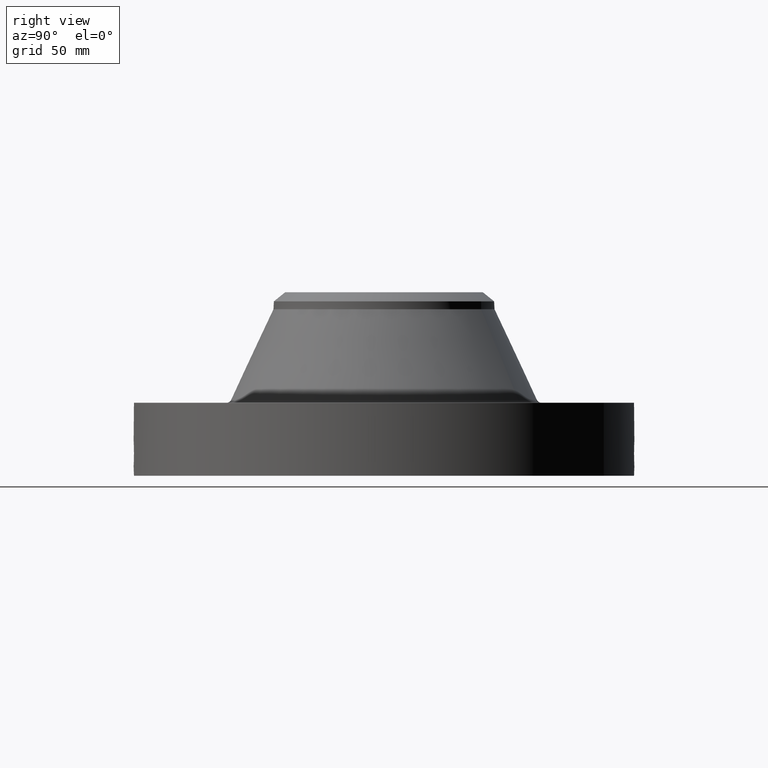
[diagram: clean part render]
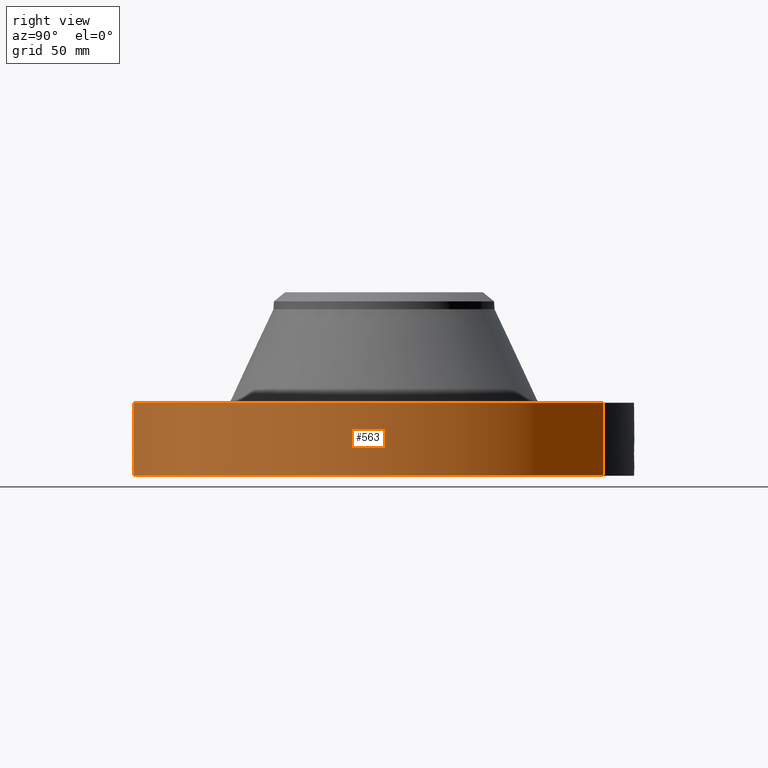
[diagram: same view with one face highlighted and labeled with its STEP entity id]
A machine part, right view. The second image highlights one B-rep face of the part: STEP entity #563.
In plain terms, the highlighted cylindrical surface (partial cylindrical patch) has radius 190.5 mm, axis along (0, 0, -1).
Its self-contained STEP definition (entity closure, byte-faithful):
#38=AXIS2_PLACEMENT_3D('Cylinder Axis2P3D',#35,#36,#37) ;
#169=AXIS2_PLACEMENT_3D('Circle Axis2P3D',#167,#168,$) ;
#467=AXIS2_PLACEMENT_3D('Circle Axis2P3D',#465,#466,$) ;
#35=CARTESIAN_POINT('Axis2P3D Location',(0.,0.,3.00000000001)) ;
#44=CARTESIAN_POINT('Vertex',(-3.59569153955,-6.5818692142,0.250000000001)) ;
#46=CARTESIAN_POINT('Vertex',(3.59569153955,6.5818692142,0.250000000001)) ;
#49=CARTESIAN_POINT('Line Origine',(-3.59569153955,-6.5818692142,1.34500000001)) ;
#53=CARTESIAN_POINT('Vertex',(-3.59569153955,-6.5818692142,2.44000000001)) ;
#60=CARTESIAN_POINT('Vertex',(3.59569153955,6.5818692142,2.44000000001)) ;
#63=CARTESIAN_POINT('Line Origine',(3.59569153955,6.5818692142,1.34500000001)) ;
#167=CARTESIAN_POINT('Axis2P3D Location',(0.,0.,0.250000000001)) ;
#465=CARTESIAN_POINT('Axis2P3D Location',(0.,0.,2.44000000001)) ;
#477=CARTESIAN_POINT('Control Point',(0.0594137259862,-7.49976466362,1.28909172961)) ;
#478=CARTESIAN_POINT('Control Point',(0.0400334612008,-7.4999181956,1.29239510268)) ;
#479=CARTESIAN_POINT('Control Point',(0.0203766834794,-7.49999808791,1.29407863473)) ;
#480=CARTESIAN_POINT('Control Point',(0.000716383547085,-7.49999996582,1.2941184985)) ;
#481=CARTESIAN_POINT('Vertex',(0.0593978658735,-7.49976505881,1.28909472339)) ;
#483=CARTESIAN_POINT('Vertex',(0.000716239285676,-7.49999996583,1.29411850892)) ;
#487=CARTESIAN_POINT('Control Point',(0.0593977563657,-7.49976479011,1.28909412322)) ;
#488=CARTESIAN_POINT('Control Point',(0.0983089030034,-7.49945661581,1.28408813024)) ;
#489=CARTESIAN_POINT('Control Point',(0.136423640249,-7.49884067125,1.27199856152)) ;
#490=CARTESIAN_POINT('Control Point',(0.171383379675,-7.49804159348,1.25374697693)) ;
#491=CARTESIAN_POINT('Vertex',(0.171383379675,-7.49804159348,1.25374697693)) ;
#495=CARTESIAN_POINT('Control Point',(0.0299928703553,-7.49994002831,0.531113901522)) ;
#496=CARTESIAN_POINT('Control Point',(0.0859755500146,-7.49971614901,0.538246911016)) ;
#497=CARTESIAN_POINT('Control Point',(0.140353669144,-7.49897633056,0.555868368192)) ;
#498=CARTESIAN_POINT('Control Point',(0.190341098218,-7.49778993886,0.583444711221)) ;
#499=CARTESIAN_POINT('Control Point',(0.279604144565,-7.49501967955,0.656390974119)) ;
#500=CARTESIAN_POINT('Control Point',(0.337036176682,-7.49248678889,0.754528685246)) ;
#501=CARTESIAN_POINT('Control Point',(0.356841453167,-7.49151237741,0.809126486132)) ;
#502=CARTESIAN_POINT('Control Point',(0.372324294018,-7.49075487622,0.898434608547)) ;
#503=CARTESIAN_POINT('Control Point',(0.363000414399,-7.49121104907,0.986917985934)) ;
#504=CARTESIAN_POINT('Control Point',(0.356248724668,-7.49154134033,1.01886311063)) ;
#505=CARTESIAN_POINT('Control Point',(0.331184222159,-7.49272778142,1.09638895497)) ;
#506=CARTESIAN_POINT('Control Point',(0.286591694797,-7.49460191765,1.1649284273)) ;
#507=CARTESIAN_POINT('Control Point',(0.253241538261,-7.49586399255,1.20135983057)) ;
#508=CARTESIAN_POINT('Control Point',(0.214254481638,-7.49706168503,1.23136507306)) ;
#509=CARTESIAN_POINT('Control Point',(0.171383379675,-7.49804159348,1.25374697693)) ;
#510=CARTESIAN_POINT('Vertex',(0.0299928703553,-7.49994002831,0.531113901522)) ;
#514=CARTESIAN_POINT('Control Point',(0.0299928703553,-7.49994002831,0.531113901522)) ;
#515=CARTESIAN_POINT('Control Point',(0.0199890959274,-7.49998003421,0.530863904945)) ;
#516=CARTESIAN_POINT('Control Point',(0.00998114713444,-7.50000000366,0.530950970166)) ;
#517=CARTESIAN_POINT('Control Point',(-2.72878353684E-006,-7.50000000003,0.531374667805)) ;
#518=CARTESIAN_POINT('Vertex',(-2.72878354044E-006,-7.50000000003,0.531374667805)) ;
#522=CARTESIAN_POINT('Control Point',(-0.193541975774,-7.49750235105,0.585733331631)) ;
#523=CARTESIAN_POINT('Control Point',(-0.149360726148,-7.49864285438,0.56106134115)) ;
#524=CARTESIAN_POINT('Control Point',(-0.101191581535,-7.49953989179,0.543441172957)) ;
#525=CARTESIAN_POINT('Control Point',(-0.0508341801204,-7.49999998154,0.533531864544)) ;
#526=CARTESIAN_POINT('Control Point',(-2.72878353684E-006,-7.50000000003,0.531374667805)) ;
#527=CARTESIAN_POINT('Vertex',(-0.193541975774,-7.49750235105,0.585733331631)) ;
#531=CARTESIAN_POINT('Control Point',(-0.193541975774,-7.49750235105,0.585733331631)) ;
#532=CARTESIAN_POINT('Control Point',(-0.222748753724,-7.49674840164,0.60204317597)) ;
#533=CARTESIAN_POINT('Control Point',(-0.250325996156,-7.49589420259,0.621241151252)) ;
#534=CARTESIAN_POINT('Control Point',(-0.275868508126,-7.49498170333,0.643170416701)) ;
#535=CARTESIAN_POINT('Control Point',(-0.343186229312,-7.49231400033,0.714369693714)) ;
#536=CARTESIAN_POINT('Control Point',(-0.386533275367,-7.49008386143,0.803767621893)) ;
#537=CARTESIAN_POINT('Control Point',(-0.402018382933,-7.48920041984,0.86797889189)) ;
#538=CARTESIAN_POINT('Control Point',(-0.403436662169,-7.48917299839,0.98212680538)) ;
#539=CARTESIAN_POINT('Control Point',(-0.363754558771,-7.4912056042,1.08679717891)) ;
#540=CARTESIAN_POINT('Control Point',(-0.339669174871,-7.49238294483,1.12822901688)) ;
#541=CARTESIAN_POINT('Control Point',(-0.270518791887,-7.49538151175,1.21297802905)) ;
#542=CARTESIAN_POINT('Control Point',(-0.177019565274,-7.49821402041,1.26827158731)) ;
#543=CARTESIAN_POINT('Control Point',(-0.119045096696,-7.49941832126,1.28847381218)) ;
#544=CARTESIAN_POINT('Control Point',(-0.0590718198971,-7.50000020374,1.29705030864)) ;
#545=CARTESIAN_POINT('Control Point',(2.58579355218E-005,-7.49999999999,1.29415298433)) ;
#546=CARTESIAN_POINT('Vertex',(2.58579355327E-005,-7.49999999999,1.29415298433)) ;
#550=CARTESIAN_POINT('Control Point',(0.000716239275228,-7.49999996583,1.2941185089)) ;
#551=CARTESIAN_POINT('Control Point',(0.000371072466121,-7.49999999879,1.29413605985)) ;
#552=CARTESIAN_POINT('Control Point',(2.58579416865E-005,-7.49999999999,1.29415298433)) ;
#36=DIRECTION('Axis2P3D Direction',(0.,0.,-0.0393700787402)) ;
#37=DIRECTION('Axis2P3D XDirection',(0.0188750212049,0.0345504945626,0.)) ;
#50=DIRECTION('Vector Direction',(0.,0.,-0.0393700787402)) ;
#64=DIRECTION('Vector Direction',(0.,0.,-0.0393700787402)) ;
#168=DIRECTION('Axis2P3D Direction',(0.,0.,-0.0393700787402)) ;
#466=DIRECTION('Axis2P3D Direction',(0.,0.,-0.0393700787402)) ;
#51=VECTOR('Line Direction',#50,0.0393700787402) ;
#65=VECTOR('Line Direction',#64,0.0393700787402) ;
#471=ORIENTED_EDGE('',*,*,#171,.F.) ;
#472=ORIENTED_EDGE('',*,*,#67,.T.) ;
#473=ORIENTED_EDGE('',*,*,#469,.T.) ;
#474=ORIENTED_EDGE('',*,*,#55,.F.) ;
#555=ORIENTED_EDGE('',*,*,#485,.F.) ;
#556=ORIENTED_EDGE('',*,*,#493,.T.) ;
#557=ORIENTED_EDGE('',*,*,#512,.F.) ;
#558=ORIENTED_EDGE('',*,*,#520,.T.) ;
#559=ORIENTED_EDGE('',*,*,#529,.F.) ;
#560=ORIENTED_EDGE('',*,*,#548,.T.) ;
#561=ORIENTED_EDGE('',*,*,#553,.F.) ;
#562=FACE_BOUND('',#554,.T.) ;
#563=ADVANCED_FACE('PartBody',(#475,#562),#39,.T.) ;
#476=B_SPLINE_CURVE_WITH_KNOTS('',3,(#477,#478,#479,#480),.UNSPECIFIED.,.F.,.U.,(4,4),(4.34032454602,6.52145692643),.UNSPECIFIED.) ;
#486=B_SPLINE_CURVE_WITH_KNOTS('',3,(#487,#488,#489,#490),.UNSPECIFIED.,.F.,.U.,(4,4),(0.,4.40810490605),.UNSPECIFIED.) ;
#494=B_SPLINE_CURVE_WITH_KNOTS('',5,(#495,#496,#497,#498,#499,#500,#501,#502,#503,#504,#505,#506,#507,#508,#509),.UNSPECIFIED.,.F.,.U.,(6,3,3,3,6),(0.,9.8082558896,20.1286739106,26.1171599771,35.1265861158),.UNSPECIFIED.) ;
#513=B_SPLINE_CURVE_WITH_KNOTS('',3,(#514,#515,#516,#517),.UNSPECIFIED.,.F.,.U.,(4,4),(0.,1.0434317888),.UNSPECIFIED.) ;
#521=B_SPLINE_CURVE_WITH_KNOTS('',4,(#522,#523,#524,#525,#526),.UNSPECIFIED.,.F.,.U.,(5,5),(0.,7.08330815824),.UNSPECIFIED.) ;
#530=B_SPLINE_CURVE_WITH_KNOTS('',5,(#531,#532,#533,#534,#535,#536,#537,#538,#539,#540,#541,#542,#543,#544,#545),.UNSPECIFIED.,.F.,.U.,(6,3,3,3,6),(0.,5.85317887391,17.0650520556,25.4867047057,36.5332857316),.UNSPECIFIED.) ;
#549=B_SPLINE_CURVE_WITH_KNOTS('',2,(#550,#551,#552),.UNSPECIFIED.,.F.,.U.,(3,3),(1.05653395238,1.08234505396),.UNSPECIFIED.) ;
#170=CIRCLE('generated circle',#169,7.50000000003) ;
#468=CIRCLE('generated circle',#467,7.50000000003) ;
#39=CYLINDRICAL_SURFACE('generated cylinder',#38,7.50000000003) ;
#55=EDGE_CURVE('',#45,#54,#52,.F.) ;
#67=EDGE_CURVE('',#47,#61,#66,.F.) ;
#171=EDGE_CURVE('',#47,#45,#170,.T.) ;
#469=EDGE_CURVE('',#61,#54,#468,.T.) ;
#485=EDGE_CURVE('',#482,#484,#476,.T.) ;
#493=EDGE_CURVE('',#482,#492,#486,.T.) ;
#512=EDGE_CURVE('',#511,#492,#494,.T.) ;
#520=EDGE_CURVE('',#511,#519,#513,.T.) ;
#529=EDGE_CURVE('',#528,#519,#521,.T.) ;
#548=EDGE_CURVE('',#528,#547,#530,.T.) ;
#553=EDGE_CURVE('',#484,#547,#549,.T.) ;
#470=EDGE_LOOP('',(#471,#472,#473,#474)) ;
#554=EDGE_LOOP('',(#555,#556,#557,#558,#559,#560,#561)) ;
#475=FACE_OUTER_BOUND('',#470,.T.) ;
#52=LINE('Line',#49,#51) ;
#66=LINE('Line',#63,#65) ;
#45=VERTEX_POINT('',#44) ;
#47=VERTEX_POINT('',#46) ;
#54=VERTEX_POINT('',#53) ;
#61=VERTEX_POINT('',#60) ;
#482=VERTEX_POINT('',#481) ;
#484=VERTEX_POINT('',#483) ;
#492=VERTEX_POINT('',#491) ;
#511=VERTEX_POINT('',#510) ;
#519=VERTEX_POINT('',#518) ;
#528=VERTEX_POINT('',#527) ;
#547=VERTEX_POINT('',#546) ;